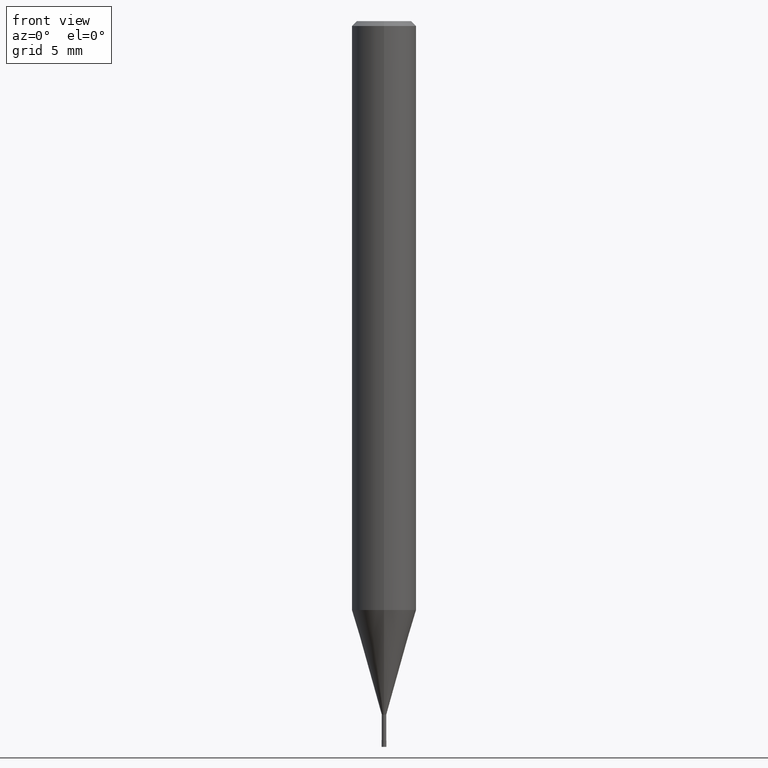
[diagram: clean part render]
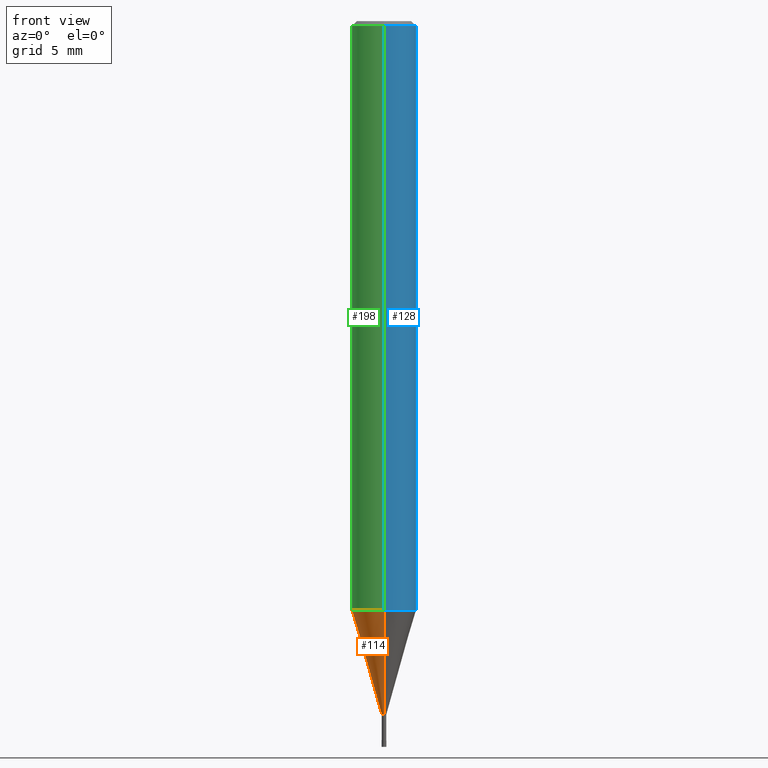
[diagram: same view with three faces highlighted in distinct colors, each labeled with its STEP entity id]
A machine part, front view with three faces highlighted in distinct colors.
Their STEP definitions:

[orange] entity #114 — the highlighted conical surface has half-angle 15.999 deg.
#114=ADVANCED_FACE('',(#254),#255,.T.);
#118=VERTEX_POINT('',#260);
#150=VERTEX_POINT('',#299);
#158=VERTEX_POINT('',#307);
#162=EDGE_CURVE('',#150,#118,#311,.T.);
#182=EDGE_CURVE('',#118,#186,#332,.T.);
#186=VERTEX_POINT('',#336);
#192=EDGE_CURVE('',#158,#150,#343,.T.);
#196=EDGE_CURVE('',#158,#186,#347,.T.);
#254=FACE_OUTER_BOUND('',#410,.T.);
#255=CONICAL_SURFACE('',#411,1.06995,0.27923596926092);
#260=CARTESIAN_POINT('',(0.0,1.99995,-36.513));
#299=CARTESIAN_POINT('',(2.44915147732706E-016,-1.99995,-36.513));
#307=CARTESIAN_POINT('',(1.71383659217442E-017,-0.13995,-43.0));
#311=CIRCLE('',#477,1.99995);
#332=LINE('',#503,#504);
#336=CARTESIAN_POINT('',(0.0,0.13995,-43.0));
#343=LINE('',#518,#519);
#347=CIRCLE('',#525,0.13995);
#410=EDGE_LOOP('',(#575,#576,#577,#578));
#411=AXIS2_PLACEMENT_3D('',#579,#580,#581);
#477=AXIS2_PLACEMENT_3D('',#660,#661,#662);
#503=CARTESIAN_POINT('',(-1.31026756827225E-016,1.06995,-39.7565));
#504=VECTOR('',#676,1.0);
#518=CARTESIAN_POINT('',(1.31026756827225E-016,-1.06995,-39.7565));
#519=VECTOR('',#691,1.0);
#525=AXIS2_PLACEMENT_3D('',#695,#696,#697);
#575=ORIENTED_EDGE('',*,*,#182,.T.);
#576=ORIENTED_EDGE('',*,*,#196,.F.);
#577=ORIENTED_EDGE('',*,*,#192,.T.);
#578=ORIENTED_EDGE('',*,*,#162,.T.);
#579=CARTESIAN_POINT('',(0.0,0.0,-39.7565));
#580=DIRECTION('',(-0.0,-0.0,1.0));
#581=DIRECTION('',(0.0,1.0,0.0));
#660=CARTESIAN_POINT('',(0.0,0.0,-36.513));
#661=DIRECTION('',(0.0,0.0,-1.0));
#662=DIRECTION('',(0.0,1.0,0.0));
#676=DIRECTION('',(3.37527585527933E-017,-0.275621292078393,-0.961266301995986));
#691=DIRECTION('',(3.37527585527934E-017,-0.275621292078393,0.961266301995986));
#695=CARTESIAN_POINT('',(0.0,0.0,-43.0));
#696=DIRECTION('',(0.0,0.0,-1.0));
#697=DIRECTION('',(0.0,1.0,0.0));

[blue] entity #128 — the highlighted cylindrical surface (edge-blend (fillet) strip) has radius 2 mm, axis along (-0, -0, 1).
#106=EDGE_CURVE('',#160,#174,#245,.T.);
#128=ADVANCED_FACE('',(#272),#273,.T.);
#152=VERTEX_POINT('',#301);
#160=VERTEX_POINT('',#309);
#168=VERTEX_POINT('',#317);
#172=EDGE_CURVE('',#152,#168,#321,.T.);
#174=VERTEX_POINT('',#323);
#178=EDGE_CURVE('',#152,#160,#328,.T.);
#206=EDGE_CURVE('',#174,#168,#359,.T.);
#245=CIRCLE('',#399,2.0);
#272=FACE_OUTER_BOUND('',#429,.T.);
#273=CYLINDRICAL_SURFACE('',#430,2.0);
#301=CARTESIAN_POINT('',(0.0,2.0,-0.299999999999997));
#309=CARTESIAN_POINT('',(0.0,2.0,-36.513));
#317=CARTESIAN_POINT('',(2.44921270764475E-016,-2.0,-0.299999999999997));
#321=CIRCLE('',#489,2.0);
#323=CARTESIAN_POINT('',(2.44921270764475E-016,-2.0,-36.513));
#328=LINE('',#497,#498);
#359=LINE('',#537,#538);
#399=AXIS2_PLACEMENT_3D('',#559,#560,#561);
#429=EDGE_LOOP('',(#609,#610,#611,#612));
#430=AXIS2_PLACEMENT_3D('',#613,#614,#615);
#489=AXIS2_PLACEMENT_3D('',#666,#667,#668);
#497=CARTESIAN_POINT('',(-2.44921270764475E-016,2.0,-18.4065));
#498=VECTOR('',#675,1.0);
#537=CARTESIAN_POINT('',(2.44921270764475E-016,-2.0,-18.4065));
#538=VECTOR('',#713,1.0);
#559=CARTESIAN_POINT('',(0.0,0.0,-36.513));
#560=DIRECTION('',(0.0,0.0,-1.0));
#561=DIRECTION('',(0.0,1.0,0.0));
#609=ORIENTED_EDGE('',*,*,#178,.F.);
#610=ORIENTED_EDGE('',*,*,#172,.T.);
#611=ORIENTED_EDGE('',*,*,#206,.F.);
#612=ORIENTED_EDGE('',*,*,#106,.F.);
#613=CARTESIAN_POINT('',(0.0,0.0,-18.4065));
#614=DIRECTION('',(-0.0,-0.0,1.0));
#615=DIRECTION('',(0.0,1.0,0.0));
#666=CARTESIAN_POINT('',(0.0,0.0,-0.299999999999997));
#667=DIRECTION('',(0.0,0.0,-1.0));
#668=DIRECTION('',(0.0,1.0,0.0));
#675=DIRECTION('',(0.0,0.0,-1.0));
#713=DIRECTION('',(-0.0,-0.0,1.0));

[green] entity #198 — the highlighted cylindrical surface (edge-blend (fillet) strip) has radius 2 mm, axis along (-0, -0, 1).
#112=EDGE_CURVE('',#174,#160,#252,.T.);
#152=VERTEX_POINT('',#301);
#160=VERTEX_POINT('',#309);
#168=VERTEX_POINT('',#317);
#174=VERTEX_POINT('',#323);
#178=EDGE_CURVE('',#152,#160,#328,.T.);
#194=EDGE_CURVE('',#168,#152,#345,.T.);
#198=ADVANCED_FACE('',(#349),#350,.T.);
#206=EDGE_CURVE('',#174,#168,#359,.T.);
#252=CIRCLE('',#408,2.0);
#301=CARTESIAN_POINT('',(0.0,2.0,-0.299999999999997));
#309=CARTESIAN_POINT('',(0.0,2.0,-36.513));
#317=CARTESIAN_POINT('',(2.44921270764475E-016,-2.0,-0.299999999999997));
#323=CARTESIAN_POINT('',(2.44921270764475E-016,-2.0,-36.513));
#328=LINE('',#497,#498);
#345=CIRCLE('',#522,2.0);
#349=FACE_OUTER_BOUND('',#527,.T.);
#350=CYLINDRICAL_SURFACE('',#528,2.0);
#359=LINE('',#537,#538);
#408=AXIS2_PLACEMENT_3D('',#571,#572,#573);
#497=CARTESIAN_POINT('',(-2.44921270764475E-016,2.0,-18.4065));
#498=VECTOR('',#675,1.0);
#522=AXIS2_PLACEMENT_3D('',#692,#693,#694);
#527=EDGE_LOOP('',(#699,#700,#701,#702));
#528=AXIS2_PLACEMENT_3D('',#703,#704,#705);
#537=CARTESIAN_POINT('',(2.44921270764475E-016,-2.0,-18.4065));
#538=VECTOR('',#713,1.0);
#571=CARTESIAN_POINT('',(0.0,0.0,-36.513));
#572=DIRECTION('',(0.0,0.0,-1.0));
#573=DIRECTION('',(0.0,1.0,0.0));
#675=DIRECTION('',(0.0,0.0,-1.0));
#692=CARTESIAN_POINT('',(0.0,0.0,-0.299999999999997));
#693=DIRECTION('',(0.0,0.0,-1.0));
#694=DIRECTION('',(0.0,1.0,0.0));
#699=ORIENTED_EDGE('',*,*,#178,.T.);
#700=ORIENTED_EDGE('',*,*,#112,.F.);
#701=ORIENTED_EDGE('',*,*,#206,.T.);
#702=ORIENTED_EDGE('',*,*,#194,.T.);
#703=CARTESIAN_POINT('',(0.0,0.0,-18.4065));
#704=DIRECTION('',(-0.0,-0.0,1.0));
#705=DIRECTION('',(0.0,1.0,0.0));
#713=DIRECTION('',(-0.0,-0.0,1.0));